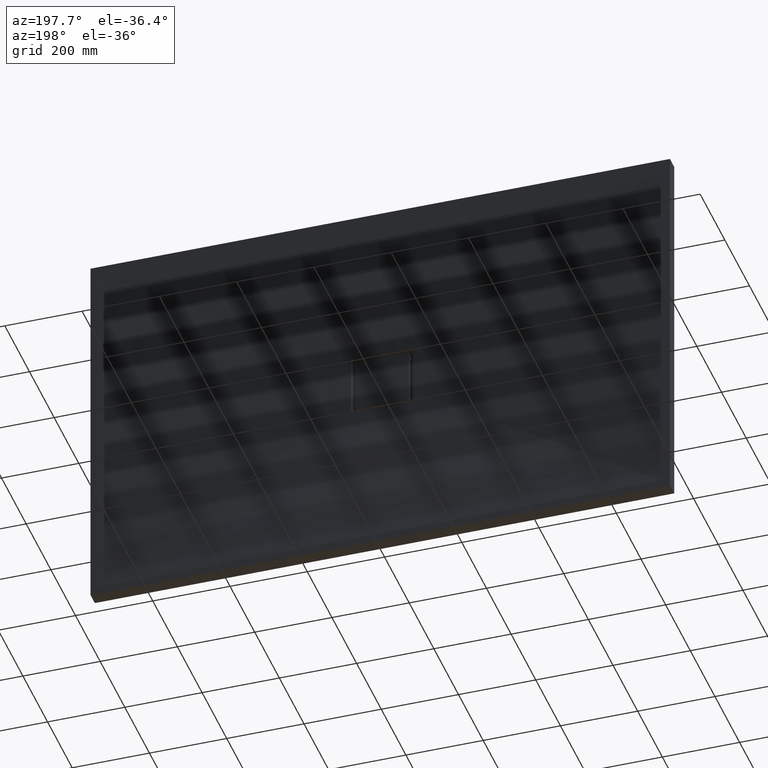
[diagram: clean part render]
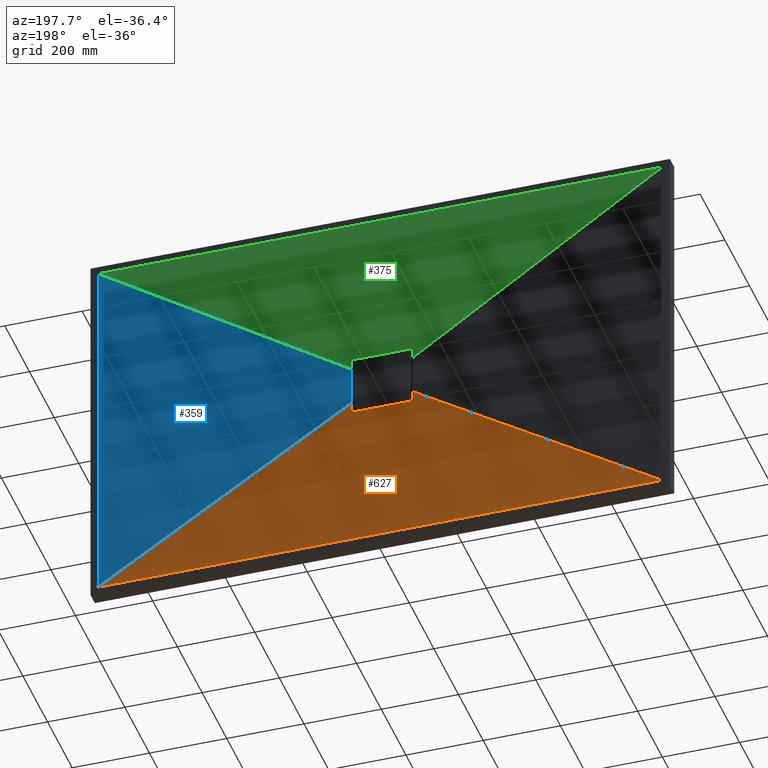
[diagram: same view with three faces highlighted in distinct colors, each labeled with its STEP entity id]
A machine part, auxiliary view with three faces highlighted in distinct colors.
Their STEP definitions:

[orange] entity #627 — the highlighted face is a freeform B-spline surface patch.
#7 = CARTESIAN_POINT ( 'NONE',  ( -60.83333333333992200, 35.00000000000000000, -480.0000000000000000 ) ) ;
#12 = CARTESIAN_POINT ( 'NONE',  ( 17.78098858876726500, 20.00000000000000700, -78.07883384446387300 ) ) ;
#17 = CARTESIAN_POINT ( 'NONE',  ( 730.0000000000000000, 35.00000000000000000, -480.0000000000000000 ) ) ;
#30 = ORIENTED_EDGE ( 'NONE', *, *, #1937, .T. ) ;
#31 = CARTESIAN_POINT ( 'NONE',  ( 64.58356011202960200, 20.59232922332966700, -80.00000000000002800 ) ) ;
#33 = CARTESIAN_POINT ( 'NONE',  ( -486.6666666666700400, 35.00000000000000000, -479.9999999999999400 ) ) ;
#43 = CARTESIAN_POINT ( 'NONE',  ( -80.00000000000018500, 20.29756753600627700, -52.60273972602733000 ) ) ;
#58 = CARTESIAN_POINT ( 'NONE',  ( 79.93368249051880500, 20.73653030956927500, -78.15810285124155100 ) ) ;
#70 = CARTESIAN_POINT ( 'NONE',  ( 60.83333333332666400, 35.00000000000000700, -480.0000000000000000 ) ) ;
#75 = CARTESIAN_POINT ( 'NONE',  ( 51.66726521428925200, 20.42544521054397300, -79.99999999999990100 ) ) ;
#79 = CARTESIAN_POINT ( 'NONE',  ( 79.99999999999981500, 20.72337490267235100, -77.49999999999995700 ) ) ;
#98 = CARTESIAN_POINT ( 'NONE',  ( 77.49999999999984400, 20.74728159742464900, -79.99999999999998600 ) ) ;
#108 = CARTESIAN_POINT ( 'NONE',  ( 79.99999999999977300, 20.40533184651834700, -60.90241090443482400 ) ) ;
#110 = CARTESIAN_POINT ( 'NONE',  ( -78.60908299000654200, 20.75498258542417700, -79.74642342992750300 ) ) ;
#125 = CARTESIAN_POINT ( 'NONE',  ( -334.5833333333382600, 35.00000000000000000, -479.9999999999998900 ) ) ;
#174 = CARTESIAN_POINT ( 'NONE',  ( -398.4222143554216000, 27.50000000000000400, -261.9762505350718100 ) ) ;
#191 = CARTESIAN_POINT ( 'NONE',  ( 79.99999999999978700, 20.29756753600627700, -52.60273972602727400 ) ) ;
#206 = CARTESIAN_POINT ( 'NONE',  ( -14.28322617419752500, 19.99999999999999600, -78.79592618157282400 ) ) ;
#227 = DIRECTION ( 'NONE',  ( -0.8354061718658442000, 0.01889615818747865000, -0.5493081678021996000 ) ) ;
#244 = CARTESIAN_POINT ( 'NONE',  ( -79.87240713645266500, 20.73894700884527600, -78.30529783571563500 ) ) ;
#260 = B_SPLINE_CURVE_WITH_KNOTS ( 'NONE', 3,
 ( #891, #2501, #2938, #2506, #244, #1719, #1729, #1749, #1723, #1442, #1737, #1483, #110, #1481, #1488, #1511 ),
 .UNSPECIFIED., .F., .F.,
 ( 4, 2, 2, 2, 2, 2, 2, 4 ),
 ( 0.0000000000000000000, 0.0004882086631027850400, 0.0009764173262055700800, 0.001464625989308355100, 0.001952834652411140200, 0.002441043315513925300, 0.002929251978616710100, 0.003905669304822295900 ),
 .UNSPECIFIED. ) ;
#283 = CARTESIAN_POINT ( 'NONE',  ( -212.9166666666726800, 35.00000000000000000, -479.9999999999999400 ) ) ;
#287 = CARTESIAN_POINT ( 'NONE',  ( 79.74649137057926400, 20.74393788002261400, -78.60894273016231200 ) ) ;
#377 = CARTESIAN_POINT ( 'NONE',  ( -729.9999999999995500, 35.00000000000000000, -480.0000000000000000 ) ) ;
#418 = CARTESIAN_POINT ( 'NONE',  ( -34.26771552658874500, 19.99999999999999600, -72.37163242847427100 ) ) ;
#433 = CARTESIAN_POINT ( 'NONE',  ( 45.85647518055138500, 20.00000000000000000, -65.63235744570586400 ) ) ;
#440 = CARTESIAN_POINT ( 'NONE',  ( 577.9166666666641300, 35.00000000000000000, -480.0000000000000000 ) ) ;
#466 = EDGE_CURVE ( 'NONE', #2242, #1430, #2365, .T. ) ;
#510 = CARTESIAN_POINT ( 'NONE',  ( -17.78098858876765200, 20.00000000000000000, -78.07883384446384400 ) ) ;
#538 = ORIENTED_EDGE ( 'NONE', *, *, #1545, .T. ) ;
#540 = CARTESIAN_POINT ( 'NONE',  ( 65.31423088561074100, 20.00000000000000400, -46.27967692935139600 ) ) ;
#600 = CARTESIAN_POINT ( 'NONE',  ( -51.66726482995697700, 20.42544520545374500, -79.99999999999997200 ) ) ;
#602 = VECTOR ( 'NONE', #1947, 1000.000000000000100 ) ;
#627 = ADVANCED_FACE ( 'NONE', ( #2057 ), #1467, .F. ) ;
#655 = B_SPLINE_CURVE_WITH_KNOTS ( 'NONE', 3,
 ( #1837, #1832, #108, #191 ),
 .UNSPECIFIED., .F., .F.,
 ( 4, 4 ),
 ( 0.0000000000000000000, 0.02490090120986476100 ),
 .UNSPECIFIED. ) ;
#666 = CARTESIAN_POINT ( 'NONE',  ( -699.5833333333336000, 35.00000000000000000, -480.0000000000000000 ) ) ;
#674 = CARTESIAN_POINT ( 'NONE',  ( -425.8333333333373500, 35.00000000000000000, -479.9999999999999400 ) ) ;
#676 = CARTESIAN_POINT ( 'NONE',  ( -669.1666666666674200, 35.00000000000000000, -480.0000000000000000 ) ) ;
#710 = CARTESIAN_POINT ( 'NONE',  ( -59.88000592127568200, 20.00000000000000700, -53.13220444286612600 ) ) ;
#713 = CARTESIAN_POINT ( 'NONE',  ( -577.9166666666689000, 35.00000000000000000, -479.9999999999999400 ) ) ;
#723 = CARTESIAN_POINT ( 'NONE',  ( -608.3333333333351900, 35.00000000000000000, -480.0000000000000000 ) ) ;
#738 = CARTESIAN_POINT ( 'NONE',  ( 79.99999999999981500, 20.72337490267235100, -77.49999999999995700 ) ) ;
#743 = CARTESIAN_POINT ( 'NONE',  ( -57.83614302380223600, 20.00000000000000000, -55.35817012224006800 ) ) ;
#758 = VERTEX_POINT ( 'NONE', #1768 ) ;
#765 = EDGE_CURVE ( 'NONE', #3007, #2826, #1423, .T. ) ;
#771 = CARTESIAN_POINT ( 'NONE',  ( -304.1666666666719700, 35.00000000000000000, -479.9999999999998900 ) ) ;
#792 = VERTEX_POINT ( 'NONE', #2942 ) ;
#794 = CARTESIAN_POINT ( 'NONE',  ( 669.1666666666656100, 35.00000000000000000, -480.0000000000000000 ) ) ;
#820 = CARTESIAN_POINT ( 'NONE',  ( 395.4166666666616300, 35.00000000000000000, -480.0000000000000000 ) ) ;
#825 = B_SPLINE_CURVE_WITH_KNOTS ( 'NONE', 3,
 ( #1690, #952, #600, #2909, #1942, #2427, #2417, #75, #31, #98 ),
 .UNSPECIFIED., .F., .F.,
 ( 4, 2, 2, 2, 4 ),
 ( 0.0000000000000000000, 0.03875210796476628200, 0.07750421592953256300, 0.1162563238942988500, 0.1550084318590651500 ),
 .UNSPECIFIED. ) ;
#846 = ORIENTED_EDGE ( 'NONE', *, *, #2627, .T. ) ;
#884 = LINE ( 'NONE', #2633, #2511 ) ;
#885 = CARTESIAN_POINT ( 'NONE',  ( -24.59082229488393500, 20.00000000000001100, -76.20865638867229600 ) ) ;
#891 = CARTESIAN_POINT ( 'NONE',  ( -80.00000000000017100, 20.72337490267235400, -77.49999999999995700 ) ) ;
#899 = CARTESIAN_POINT ( 'NONE',  ( -80.00000000000022700, 20.54796906225871900, -69.20148566621740800 ) ) ;
#906 = CARTESIAN_POINT ( 'NONE',  ( 79.15190222372587000, 20.75355120448779200, -79.38355797678613600 ) ) ;
#910 = CARTESIAN_POINT ( 'NONE',  ( 608.3333333333312100, 35.00000000000000000, -480.0000000000000000 ) ) ;
#925 = CARTESIAN_POINT ( 'NONE',  ( -50.99595834023846700, 20.00000000000000000, -61.72385999616457000 ) ) ;
#952 = CARTESIAN_POINT ( 'NONE',  ( -64.58355993399010200, 20.59232922119380800, -79.99999999999994300 ) ) ;
#970 = CARTESIAN_POINT ( 'NONE',  ( 59.88000592127530600, 20.00000000000000400, -53.13220444286612600 ) ) ;
#981 = CARTESIAN_POINT ( 'NONE',  ( -729.9999999999995500, 35.00000000000000000, -480.0000000000000000 ) ) ;
#984 = CARTESIAN_POINT ( 'NONE',  ( 57.83614302380183900, 19.99999999999999300, -55.35817012224009700 ) ) ;
#1008 = CARTESIAN_POINT ( 'NONE',  ( -80.00000000000018500, 20.40533184651832200, -60.90241090443485200 ) ) ;
#1043 = LINE ( 'NONE', #1867, #602 ) ;
#1076 = CARTESIAN_POINT ( 'NONE',  ( 486.6666666666627100, 35.00000000000000000, -480.0000000000000000 ) ) ;
#1086 = CARTESIAN_POINT ( 'NONE',  ( 43.11513718914951500, 19.99999999999999600, -67.47086384605854900 ) ) ;
#1099 = CARTESIAN_POINT ( 'NONE',  ( 152.0833333333267200, 35.00000000000000700, -480.0000000000000000 ) ) ;
#1105 = CARTESIAN_POINT ( 'NONE',  ( 50.99595834023806200, 19.99999999999999600, -61.72385999616462000 ) ) ;
#1110 = CARTESIAN_POINT ( 'NONE',  ( -65.31423088561112400, 19.99999999999999300, -46.27967692935136800 ) ) ;
#1186 = CARTESIAN_POINT ( 'NONE',  ( 7.190180150497578600, 19.99999999999999600, -79.75656613820919500 ) ) ;
#1187 = CARTESIAN_POINT ( 'NONE',  ( 79.02326078082973000, 20.75431026900704600, -79.48905510671265500 ) ) ;
#1250 = CARTESIAN_POINT ( 'NONE',  ( 77.66506709047254700, 20.74926182864746600, -79.99999999999997200 ) ) ;
#1277 = EDGE_CURVE ( 'NONE', #758, #2950, #260, .T. ) ;
#1352 = CARTESIAN_POINT ( 'NONE',  ( 304.1666666666608300, 35.00000000000000000, -480.0000000000000000 ) ) ;
#1403 = ORIENTED_EDGE ( 'NONE', *, *, #2896, .T. ) ;
#1423 = B_SPLINE_CURVE_WITH_KNOTS ( 'NONE', 3,
 ( #3287, #1250, #1994, #3071, #2030, #1548, #3063, #1187, #906, #2772, #2260, #1887, #287, #58, #1673, #738 ),
 .UNSPECIFIED., .F., .F.,
 ( 4, 2, 2, 2, 2, 2, 2, 4 ),
 ( 1.387778780781445700E-017, 0.0004882086201234696200, 0.0009764172402469253700, 0.001464625860370381100, 0.001952834480493836900, 0.002441043100617292700, 0.002929251720740748200, 0.003905668960987621700 ),
 .UNSPECIFIED. ) ;
#1430 = VERTEX_POINT ( 'NONE', #981 ) ;
#1442 = CARTESIAN_POINT ( 'NONE',  ( -79.15324920597738900, 20.75354160780322100, -79.38237599313365000 ) ) ;
#1456 = CARTESIAN_POINT ( 'NONE',  ( 243.3333333333270900, 35.00000000000000000, -480.0000000000000600 ) ) ;
#1467 = B_SPLINE_SURFACE_WITH_KNOTS ( 'NONE', 3, 1, ( 
 ( #377, #1783 ),
 ( #666, #1110 ),
 ( #676, #2111 ),
 ( #723, #710 ),
 ( #713, #743 ),
 ( #3191, #1742 ),
 ( #33, #925 ),
 ( #674, #1641 ),
 ( #2080, #1786 ),
 ( #125, #1922 ),
 ( #771, #418 ),
 ( #1794, #1686 ),
 ( #283, #885 ),
 ( #2219, #510 ),
 ( #2769, #206 ),
 ( #7, #1917 ),
 ( #1899, #1702 ),
 ( #1668, #1642 ),
 ( #70, #1186 ),
 ( #1607, #2640 ),
 ( #1099, #12 ),
 ( #2656, #2497 ),
 ( #1456, #2439 ),
 ( #1352, #3262 ),
 ( #2444, #1634 ),
 ( #820, #1086 ),
 ( #2681, #433 ),
 ( #1076, #1105 ),
 ( #3224, #2762 ),
 ( #440, #984 ),
 ( #910, #970 ),
 ( #794, #2754 ),
 ( #2125, #540 ),
 ( #17, #2382 ) ),
 .UNSPECIFIED., .F., .F., .F.,
 ( 4, 2, 2, 2, 2, 2, 2, 2, 2, 2, 2, 2, 2, 2, 2, 2, 4 ),
 ( 2, 2 ),
 ( 0.0000000000000000000, 0.06249999999999995800, 0.1250000000000000300, 0.1875000000000000800, 0.2500000000000000600, 0.3125000000000000000, 0.3749999999999999400, 0.4374999999999999400, 0.5000000000000000000, 0.5624999999999998900, 0.6249999999999997800, 0.6874999999999997800, 0.7499999999999997800, 0.8124999999999998900, 0.8750000000000000000, 0.9375000000000000000, 1.000000000000000000 ),
 ( 0.0000000000000000000, 1.000000000000000000 ),
 .UNSPECIFIED. ) ;
#1481 = CARTESIAN_POINT ( 'NONE',  ( -78.15820362912754100, 20.75369959421530900, -79.93366004273393300 ) ) ;
#1483 = CARTESIAN_POINT ( 'NONE',  ( -78.75450322843603600, 20.75501843258394200, -79.66868860253407500 ) ) ;
#1488 = CARTESIAN_POINT ( 'NONE',  ( -77.83013543412303600, 20.75124207490404200, -79.99999999999990100 ) ) ;
#1511 = CARTESIAN_POINT ( 'NONE',  ( -77.50000000000018500, 20.74728159742464900, -79.99999999999992900 ) ) ;
#1545 = EDGE_CURVE ( 'NONE', #2826, #792, #655, .T. ) ;
#1548 = CARTESIAN_POINT ( 'NONE',  ( 78.60804732091558800, 20.75498306035850500, -79.74701056525553600 ) ) ;
#1607 = CARTESIAN_POINT ( 'NONE',  ( 121.6666666666600100, 35.00000000000000700, -480.0000000000000000 ) ) ;
#1634 = CARTESIAN_POINT ( 'NONE',  ( 37.32075798334639700, 19.99999999999999600, -70.84062073782978100 ) ) ;
#1641 = CARTESIAN_POINT ( 'NONE',  ( -45.85647518055181800, 20.00000000000000400, -65.63235744570585000 ) ) ;
#1642 = CARTESIAN_POINT ( 'NONE',  ( 3.595163638422709300, 20.00000000000000000, -80.00000000000001400 ) ) ;
#1668 = CARTESIAN_POINT ( 'NONE',  ( 30.41666666666002800, 35.00000000000000700, -480.0000000000000000 ) ) ;
#1673 = CARTESIAN_POINT ( 'NONE',  ( 79.99999999999985800, 20.73035187230991000, -77.83008298017394100 ) ) ;
#1685 = VERTEX_POINT ( 'NONE', #2467 ) ;
#1686 = CARTESIAN_POINT ( 'NONE',  ( -27.90269961258950800, 20.00000000000000000, -75.05577167748660400 ) ) ;
#1690 = CARTESIAN_POINT ( 'NONE',  ( -77.50000000000018500, 20.74728159742464900, -79.99999999999992900 ) ) ;
#1702 = CARTESIAN_POINT ( 'NONE',  ( -3.595163638423100500, 20.00000000000000700, -80.00000000000001400 ) ) ;
#1719 = CARTESIAN_POINT ( 'NONE',  ( -79.74707769774060800, 20.74392267143957700, -78.60790886160211200 ) ) ;
#1723 = CARTESIAN_POINT ( 'NONE',  ( -79.38368881353113700, 20.75129406880513400, -79.15175324136760100 ) ) ;
#1729 = CARTESIAN_POINT ( 'NONE',  ( -79.67038046925173900, 20.74608750149359100, -78.75144226295159900 ) ) ;
#1737 = CARTESIAN_POINT ( 'NONE',  ( -79.02751135365863900, 20.75429175829305400, -79.48587453515114000 ) ) ;
#1742 = CARTESIAN_POINT ( 'NONE',  ( -53.39418171596762600, 20.00000000000000000, -59.65406774089094500 ) ) ;
#1749 = CARTESIAN_POINT ( 'NONE',  ( -79.48917346860187600, 20.74977328490339400, -79.02310473396315200 ) ) ;
#1768 = CARTESIAN_POINT ( 'NONE',  ( -80.00000000000017100, 20.72337490267235400, -77.49999999999995700 ) ) ;
#1783 = CARTESIAN_POINT ( 'NONE',  ( -66.84442871084365800, 20.00000000000000000, -43.95250107014354100 ) ) ;
#1786 = CARTESIAN_POINT ( 'NONE',  ( -43.11513718914988400, 20.00000000000000000, -67.47086384605856300 ) ) ;
#1794 = CARTESIAN_POINT ( 'NONE',  ( -243.3333333333391700, 35.00000000000000000, -479.9999999999998900 ) ) ;
#1807 = EDGE_CURVE ( 'NONE', #1685, #792, #1043, .T. ) ;
#1832 = CARTESIAN_POINT ( 'NONE',  ( 79.99999999999981500, 20.54796906225870900, -69.20148566621740800 ) ) ;
#1837 = CARTESIAN_POINT ( 'NONE',  ( 79.99999999999981500, 20.72337490267235100, -77.49999999999995700 ) ) ;
#1867 = CARTESIAN_POINT ( 'NONE',  ( 398.4222143554216600, 27.50000000000000400, -261.9762505350718100 ) ) ;
#1887 = CARTESIAN_POINT ( 'NONE',  ( 79.66878285540619200, 20.74613064791634200, -78.75434004391178200 ) ) ;
#1899 = CARTESIAN_POINT ( 'NONE',  ( -30.41666666667327200, 35.00000000000000700, -479.9999999999999400 ) ) ;
#1917 = CARTESIAN_POINT ( 'NONE',  ( -7.190180150497985400, 20.00000000000000000, -79.75656613820920900 ) ) ;
#1922 = CARTESIAN_POINT ( 'NONE',  ( -37.32075798334677300, 20.00000000000000700, -70.84062073782980900 ) ) ;
#1937 = EDGE_CURVE ( 'NONE', #2242, #758, #2451, .T. ) ;
#1942 = CARTESIAN_POINT ( 'NONE',  ( -12.91757371140832200, 19.99999999498944800, -80.00000000000005700 ) ) ;
#1947 = DIRECTION ( 'NONE',  ( -0.8354061718658445400, -0.01889615818747863300, 0.5493081678021990400 ) ) ;
#1994 = CARTESIAN_POINT ( 'NONE',  ( 77.82738136524386600, 20.75084851756450600, -79.98381219146996600 ) ) ;
#1996 = ORIENTED_EDGE ( 'NONE', *, *, #765, .T. ) ;
#2028 = ORIENTED_EDGE ( 'NONE', *, *, #466, .F. ) ;
#2030 = CARTESIAN_POINT ( 'NONE',  ( 78.30541432766848700, 20.75411501797027100, -79.87236867003100800 ) ) ;
#2057 = FACE_OUTER_BOUND ( 'NONE', #3263, .T. ) ;
#2079 = CARTESIAN_POINT ( 'NONE',  ( -80.00000000000018500, 20.29756753600627700, -52.60273972602733000 ) ) ;
#2080 = CARTESIAN_POINT ( 'NONE',  ( -395.4166666666710100, 35.00000000000000000, -479.9999999999999400 ) ) ;
#2111 = CARTESIAN_POINT ( 'NONE',  ( -63.61897898002700900, 20.00000000000000400, -48.59291894535060400 ) ) ;
#2125 = CARTESIAN_POINT ( 'NONE',  ( 699.5833333333328000, 35.00000000000000000, -480.0000000000000000 ) ) ;
#2187 = CARTESIAN_POINT ( 'NONE',  ( 77.49999999999984400, 20.74728159742464900, -79.99999999999998600 ) ) ;
#2219 = CARTESIAN_POINT ( 'NONE',  ( -152.0833333333396800, 35.00000000000000000, -479.9999999999999400 ) ) ;
#2242 = VERTEX_POINT ( 'NONE', #43 ) ;
#2260 = CARTESIAN_POINT ( 'NONE',  ( 79.48599149907825300, 20.74982707353080300, -79.02735908850974100 ) ) ;
#2315 = ORIENTED_EDGE ( 'NONE', *, *, #1807, .F. ) ;
#2327 = CARTESIAN_POINT ( 'NONE',  ( -77.50000000000018500, 20.74728159742464900, -79.99999999999992900 ) ) ;
#2365 = LINE ( 'NONE', #174, #2440 ) ;
#2382 = CARTESIAN_POINT ( 'NONE',  ( 66.84442871084327500, 20.00000000000000000, -43.95250107014356200 ) ) ;
#2417 = CARTESIAN_POINT ( 'NONE',  ( 25.83424169381748900, 20.12736958912086000, -79.99999999999994300 ) ) ;
#2427 = CARTESIAN_POINT ( 'NONE',  ( 12.91757535901146500, 20.00000000501057000, -80.00000000000002800 ) ) ;
#2439 = CARTESIAN_POINT ( 'NONE',  ( 27.90269961258911000, 19.99999999999999600, -75.05577167748659000 ) ) ;
#2440 = VECTOR ( 'NONE', #227, 1000.000000000000000 ) ;
#2444 = CARTESIAN_POINT ( 'NONE',  ( 334.5833333333277400, 35.00000000000000000, -480.0000000000000000 ) ) ;
#2451 = B_SPLINE_CURVE_WITH_KNOTS ( 'NONE', 3,
 ( #2079, #1008, #899, #2771 ),
 .UNSPECIFIED., .F., .F.,
 ( 4, 4 ),
 ( 0.0000000000000000000, 0.02490090120986471200 ),
 .UNSPECIFIED. ) ;
#2467 = CARTESIAN_POINT ( 'NONE',  ( 730.0000000000000000, 35.00000000000000000, -480.0000000000000000 ) ) ;
#2497 = CARTESIAN_POINT ( 'NONE',  ( 24.59082229488354400, 20.00000000000000700, -76.20865638867235200 ) ) ;
#2501 = CARTESIAN_POINT ( 'NONE',  ( -80.00000000000017100, 20.72686339462049800, -77.66504182737956800 ) ) ;
#2506 = CARTESIAN_POINT ( 'NONE',  ( -79.92040432727372900, 20.73613776432312200, -78.14663492098000600 ) ) ;
#2511 = VECTOR ( 'NONE', #2637, 1000.000000000000000 ) ;
#2627 = EDGE_CURVE ( 'NONE', #2950, #3007, #825, .T. ) ;
#2633 = CARTESIAN_POINT ( 'NONE',  ( 730.0000000000000000, 35.00000000000000000, -480.0000000000000000 ) ) ;
#2637 = DIRECTION ( 'NONE',  ( -1.000000000000000000, 0.0000000000000000000, 0.0000000000000000000 ) ) ;
#2640 = CARTESIAN_POINT ( 'NONE',  ( 14.28322617419712000, 19.99999999999999600, -78.79592618157282400 ) ) ;
#2656 = CARTESIAN_POINT ( 'NONE',  ( 212.9166666666602600, 35.00000000000000000, -480.0000000000000000 ) ) ;
#2681 = CARTESIAN_POINT ( 'NONE',  ( 425.8333333333286000, 35.00000000000000000, -480.0000000000000000 ) ) ;
#2754 = CARTESIAN_POINT ( 'NONE',  ( 63.61897898002662500, 20.00000000000000000, -48.59291894535061800 ) ) ;
#2762 = CARTESIAN_POINT ( 'NONE',  ( 53.39418171596723500, 20.00000000000000000, -59.65406774089098700 ) ) ;
#2769 = CARTESIAN_POINT ( 'NONE',  ( -121.6666666666731100, 35.00000000000000000, -480.0000000000000000 ) ) ;
#2771 = CARTESIAN_POINT ( 'NONE',  ( -80.00000000000017100, 20.72337490267235400, -77.49999999999995700 ) ) ;
#2772 = CARTESIAN_POINT ( 'NONE',  ( 79.38250386458074100, 20.75130912804327500, -79.15310338711881900 ) ) ;
#2826 = VERTEX_POINT ( 'NONE', #79 ) ;
#2896 = EDGE_CURVE ( 'NONE', #1685, #1430, #884, .T. ) ;
#2909 = CARTESIAN_POINT ( 'NONE',  ( -25.83424101185430300, 20.12736958190758300, -79.99999999999997200 ) ) ;
#2938 = CARTESIAN_POINT ( 'NONE',  ( -79.98381709557682500, 20.73010905225111200, -77.82733234523432500 ) ) ;
#2942 = CARTESIAN_POINT ( 'NONE',  ( 79.99999999999978700, 20.29756753600627700, -52.60273972602727400 ) ) ;
#2950 = VERTEX_POINT ( 'NONE', #2327 ) ;
#3007 = VERTEX_POINT ( 'NONE', #2187 ) ;
#3063 = CARTESIAN_POINT ( 'NONE',  ( 78.75158852867751600, 20.75501880144086200, -79.67029716371668300 ) ) ;
#3071 = CARTESIAN_POINT ( 'NONE',  ( 78.14672868555875600, 20.75327368616376600, -79.92038087252376500 ) ) ;
#3191 = CARTESIAN_POINT ( 'NONE',  ( -517.0833333333363300, 35.00000000000000000, -479.9999999999999400 ) ) ;
#3224 = CARTESIAN_POINT ( 'NONE',  ( 517.0833333333297300, 35.00000000000000000, -480.0000000000000000 ) ) ;
#3262 = CARTESIAN_POINT ( 'NONE',  ( 34.26771552658836100, 20.00000000000000000, -72.37163242847430000 ) ) ;
#3263 = EDGE_LOOP ( 'NONE', ( #2028, #30, #3265, #846, #1996, #538, #2315, #1403 ) ) ;
#3265 = ORIENTED_EDGE ( 'NONE', *, *, #1277, .T. ) ;
#3287 = CARTESIAN_POINT ( 'NONE',  ( 77.49999999999984400, 20.74728159742464900, -79.99999999999998600 ) ) ;

[blue] entity #359 — the highlighted face is a freeform B-spline surface patch.
#65 = CARTESIAN_POINT ( 'NONE',  ( 730.0000000000003400, 35.00000000000000000, 480.0000000000000000 ) ) ;
#87 = CARTESIAN_POINT ( 'NONE',  ( 730.0000000000002300, 35.00000000000000000, 40.00000000000006400 ) ) ;
#132 = EDGE_LOOP ( 'NONE', ( #1482, #2132, #2821, #2138 ) ) ;
#163 = CARTESIAN_POINT ( 'NONE',  ( 70.69989252939682000, 20.00000000000000000, 37.62925046358960700 ) ) ;
#182 = VERTEX_POINT ( 'NONE', #65 ) ;
#263 = VERTEX_POINT ( 'NONE', #3234 ) ;
#323 = B_SPLINE_SURFACE_WITH_KNOTS ( 'NONE', 3, 1, ( 
 ( #2693, #675 ),
 ( #1294, #2545 ),
 ( #2572, #695 ),
 ( #1115, #1229 ),
 ( #1829, #1157 ),
 ( #1844, #1209 ),
 ( #1121, #1812 ),
 ( #2414, #2179 ),
 ( #2849, #2859 ),
 ( #87, #1628 ),
 ( #360, #3292 ),
 ( #486, #804 ),
 ( #1609, #557 ),
 ( #684, #1303 ),
 ( #2182, #1107 ),
 ( #2736, #163 ),
 ( #479, #1273 ),
 ( #1913, #416 ) ),
 .UNSPECIFIED., .F., .F., .F.,
 ( 4, 2, 2, 2, 2, 2, 2, 2, 4 ),
 ( 2, 2 ),
 ( 0.0000000000000000000, 0.1250000000000000000, 0.2500000000000000000, 0.3750000000000000000, 0.5000000000000000000, 0.6250000000000000000, 0.7500000000000000000, 0.8750000000000000000, 1.000000000000000000 ),
 ( 0.0000000000000000000, 1.000000000000000000 ),
 .UNSPECIFIED. ) ;
#327 = DIRECTION ( 'NONE',  ( -3.469446951953614200E-016, 0.0000000000000000000, -1.000000000000000000 ) ) ;
#359 = ADVANCED_FACE ( 'NONE', ( #2705 ), #323, .F. ) ;
#360 = CARTESIAN_POINT ( 'NONE',  ( 730.0000000000002300, 35.00000000000000000, 80.00000000000007100 ) ) ;
#416 = CARTESIAN_POINT ( 'NONE',  ( 66.84442871084327500, 20.00000000000000000, 43.95250107014368300 ) ) ;
#479 = CARTESIAN_POINT ( 'NONE',  ( 730.0000000000003400, 35.00000000000000000, 440.0000000000000000 ) ) ;
#486 = CARTESIAN_POINT ( 'NONE',  ( 730.0000000000002300, 35.00000000000000000, 160.0000000000000600 ) ) ;
#557 = CARTESIAN_POINT ( 'NONE',  ( 77.63771430308135300, 19.99999999999999600, 19.68811830135162600 ) ) ;
#589 = LINE ( 'NONE', #948, #1784 ) ;
#602 = VECTOR ( 'NONE', #1947, 1000.000000000000100 ) ;
#654 = DIRECTION ( 'NONE',  ( -0.8354061718658447600, -0.01889615818747863000, -0.5493081678021987100 ) ) ;
#675 = CARTESIAN_POINT ( 'NONE',  ( 66.84442871084324600, 20.00000000000000000, -43.95250107014357600 ) ) ;
#684 = CARTESIAN_POINT ( 'NONE',  ( 730.0000000000003400, 35.00000000000000000, 280.0000000000000600 ) ) ;
#695 = CARTESIAN_POINT ( 'NONE',  ( 70.69989252939682000, 20.00000000000000400, -37.62925046358951400 ) ) ;
#792 = VERTEX_POINT ( 'NONE', #2942 ) ;
#804 = CARTESIAN_POINT ( 'NONE',  ( 78.51847946194581600, 20.00000000000000000, 15.83029865828928700 ) ) ;
#827 = LINE ( 'NONE', #975, #1492 ) ;
#948 = CARTESIAN_POINT ( 'NONE',  ( 398.4222143554217700, 27.50000000000000400, 261.9762505350718700 ) ) ;
#975 = CARTESIAN_POINT ( 'NONE',  ( 730.0000000000003400, 35.00000000000000000, 480.0000000000000000 ) ) ;
#1043 = LINE ( 'NONE', #1867, #602 ) ;
#1107 = CARTESIAN_POINT ( 'NONE',  ( 73.94783370635914800, 19.99999999999999600, 30.75960312254489500 ) ) ;
#1115 = CARTESIAN_POINT ( 'NONE',  ( 730.0000000000000000, 35.00000000000000000, -319.9999999999998900 ) ) ;
#1121 = CARTESIAN_POINT ( 'NONE',  ( 730.0000000000001100, 35.00000000000000000, -159.9999999999999400 ) ) ;
#1157 = CARTESIAN_POINT ( 'NONE',  ( 75.35221163484369800, 19.99999999999999600, -27.15291671612125400 ) ) ;
#1209 = CARTESIAN_POINT ( 'NONE',  ( 77.63771430308132400, 19.99999999999999300, -19.68811830135153300 ) ) ;
#1229 = CARTESIAN_POINT ( 'NONE',  ( 73.94783370635912000, 20.00000000000000000, -30.75960312254479900 ) ) ;
#1273 = CARTESIAN_POINT ( 'NONE',  ( 68.85674365909430600, 20.00000000000000000, 40.89210541967857900 ) ) ;
#1294 = CARTESIAN_POINT ( 'NONE',  ( 730.0000000000000000, 35.00000000000000000, -439.9999999999999400 ) ) ;
#1303 = CARTESIAN_POINT ( 'NONE',  ( 75.35221163484372700, 19.99999999999998900, 27.15291671612135400 ) ) ;
#1482 = ORIENTED_EDGE ( 'NONE', *, *, #1807, .T. ) ;
#1492 = VECTOR ( 'NONE', #327, 1000.000000000000000 ) ;
#1609 = CARTESIAN_POINT ( 'NONE',  ( 730.0000000000002300, 35.00000000000000000, 200.0000000000000600 ) ) ;
#1628 = CARTESIAN_POINT ( 'NONE',  ( 79.99999999999984400, 20.00000000000000000, 3.990844955758591400 ) ) ;
#1685 = VERTEX_POINT ( 'NONE', #2467 ) ;
#1710 = EDGE_CURVE ( 'NONE', #182, #1685, #827, .T. ) ;
#1746 = CARTESIAN_POINT ( 'NONE',  ( 79.99999999945667600, 20.00000122086740000, -17.53496761955843300 ) ) ;
#1769 = CARTESIAN_POINT ( 'NONE',  ( 79.99999999945667600, 19.99999877913260000, 17.53448752477206800 ) ) ;
#1784 = VECTOR ( 'NONE', #654, 1000.000000000000000 ) ;
#1787 = CARTESIAN_POINT ( 'NONE',  ( 79.99999999999978700, 20.14388672363017500, -35.06888143455144300 ) ) ;
#1795 = CARTESIAN_POINT ( 'NONE',  ( 79.99999999999984400, 20.29756753600628000, 52.60273972602750100 ) ) ;
#1807 = EDGE_CURVE ( 'NONE', #1685, #792, #1043, .T. ) ;
#1812 = CARTESIAN_POINT ( 'NONE',  ( 78.51847946194580200, 19.99999999999999600, -15.83029865828919600 ) ) ;
#1829 = CARTESIAN_POINT ( 'NONE',  ( 730.0000000000000000, 35.00000000000000000, -279.9999999999999400 ) ) ;
#1844 = CARTESIAN_POINT ( 'NONE',  ( 730.0000000000000000, 35.00000000000000000, -199.9999999999999400 ) ) ;
#1867 = CARTESIAN_POINT ( 'NONE',  ( 398.4222143554216600, 27.50000000000000400, -261.9762505350718100 ) ) ;
#1913 = CARTESIAN_POINT ( 'NONE',  ( 730.0000000000003400, 35.00000000000000000, 480.0000000000000000 ) ) ;
#1947 = DIRECTION ( 'NONE',  ( -0.8354061718658445400, -0.01889615818747863300, 0.5493081678021990400 ) ) ;
#2076 = CARTESIAN_POINT ( 'NONE',  ( 79.99999999999978700, 20.29756753600627700, -52.60273972602727400 ) ) ;
#2132 = ORIENTED_EDGE ( 'NONE', *, *, #2353, .T. ) ;
#2138 = ORIENTED_EDGE ( 'NONE', *, *, #1710, .T. ) ;
#2179 = CARTESIAN_POINT ( 'NONE',  ( 79.69972740894539200, 19.99999999999999300, -7.981442448983718100 ) ) ;
#2180 = CARTESIAN_POINT ( 'NONE',  ( 79.99999999999990100, 20.14388539347732600, 35.06872967382479100 ) ) ;
#2182 = CARTESIAN_POINT ( 'NONE',  ( 730.0000000000003400, 35.00000000000000000, 320.0000000000000600 ) ) ;
#2353 = EDGE_CURVE ( 'NONE', #792, #263, #2984, .T. ) ;
#2414 = CARTESIAN_POINT ( 'NONE',  ( 730.0000000000002300, 35.00000000000000000, -79.99999999999992900 ) ) ;
#2467 = CARTESIAN_POINT ( 'NONE',  ( 730.0000000000000000, 35.00000000000000000, -480.0000000000000000 ) ) ;
#2545 = CARTESIAN_POINT ( 'NONE',  ( 68.85674365909423500, 19.99999999999999600, -40.89210541967850100 ) ) ;
#2557 = EDGE_CURVE ( 'NONE', #182, #263, #589, .T. ) ;
#2572 = CARTESIAN_POINT ( 'NONE',  ( 730.0000000000000000, 35.00000000000000000, -399.9999999999998900 ) ) ;
#2693 = CARTESIAN_POINT ( 'NONE',  ( 730.0000000000000000, 35.00000000000000000, -480.0000000000000000 ) ) ;
#2705 = FACE_OUTER_BOUND ( 'NONE', #132, .T. ) ;
#2736 = CARTESIAN_POINT ( 'NONE',  ( 730.0000000000003400, 35.00000000000000000, 400.0000000000000000 ) ) ;
#2821 = ORIENTED_EDGE ( 'NONE', *, *, #2557, .F. ) ;
#2849 = CARTESIAN_POINT ( 'NONE',  ( 730.0000000000002300, 35.00000000000000000, -39.99999999999993600 ) ) ;
#2859 = CARTESIAN_POINT ( 'NONE',  ( 79.99999999999984400, 20.00000000000000000, -3.990844955758502200 ) ) ;
#2942 = CARTESIAN_POINT ( 'NONE',  ( 79.99999999999978700, 20.29756753600627700, -52.60273972602727400 ) ) ;
#2984 = B_SPLINE_CURVE_WITH_KNOTS ( 'NONE', 3,
 ( #2076, #1787, #1746, #1769, #2180, #1795 ),
 .UNSPECIFIED., .F., .F.,
 ( 4, 2, 4 ),
 ( 0.0000000000000000000, 0.05260334132809227300, 0.1052066826561845500 ),
 .UNSPECIFIED. ) ;
#3234 = CARTESIAN_POINT ( 'NONE',  ( 79.99999999999984400, 20.29756753600628000, 52.60273972602750100 ) ) ;
#3292 = CARTESIAN_POINT ( 'NONE',  ( 79.69972740894539200, 19.99999999999999600, 7.981442448983805200 ) ) ;

[green] entity #375 — the highlighted face is a freeform B-spline surface patch.
#65 = CARTESIAN_POINT ( 'NONE',  ( 730.0000000000003400, 35.00000000000000000, 480.0000000000000000 ) ) ;
#68 = ORIENTED_EDGE ( 'NONE', *, *, #1234, .T. ) ;
#84 = B_SPLINE_CURVE_WITH_KNOTS ( 'NONE', 3,
 ( #2326, #2145, #2411, #1756 ),
 .UNSPECIFIED., .F., .F.,
 ( 4, 4 ),
 ( 0.0000000000000000000, 0.02490090120986472600 ),
 .UNSPECIFIED. ) ;
#123 = ORIENTED_EDGE ( 'NONE', *, *, #2557, .T. ) ;
#143 = ORIENTED_EDGE ( 'NONE', *, *, #1714, .T. ) ;
#151 = CARTESIAN_POINT ( 'NONE',  ( 212.9166666666698400, 35.00000000000000000, 479.9999999999999400 ) ) ;
#182 = VERTEX_POINT ( 'NONE', #65 ) ;
#230 = CARTESIAN_POINT ( 'NONE',  ( -14.28322617419749300, 19.99999999999999600, 78.79592618157293800 ) ) ;
#263 = VERTEX_POINT ( 'NONE', #3234 ) ;
#270 = CARTESIAN_POINT ( 'NONE',  ( -608.3333333333320100, 35.00000000000000000, 480.0000000000000000 ) ) ;
#274 = CARTESIAN_POINT ( 'NONE',  ( 34.26771552658836100, 19.99999999999999600, 72.37163242847442700 ) ) ;
#278 = VECTOR ( 'NONE', #1009, 1000.000000000000000 ) ;
#355 = CARTESIAN_POINT ( 'NONE',  ( 78.60908299000621500, 20.75498258542417300, 79.74642342992767400 ) ) ;
#375 = ADVANCED_FACE ( 'NONE', ( #2617 ), #2515, .F. ) ;
#401 = CARTESIAN_POINT ( 'NONE',  ( -121.6666666666632000, 35.00000000000000700, 480.0000000000000000 ) ) ;
#410 = CARTESIAN_POINT ( 'NONE',  ( 395.4166666666690200, 35.00000000000000000, 479.9999999999999400 ) ) ;
#442 = CARTESIAN_POINT ( 'NONE',  ( -57.83614302380223600, 20.00000000000000000, 55.35817012224022400 ) ) ;
#460 = CARTESIAN_POINT ( 'NONE',  ( 334.5833333333359300, 35.00000000000000000, 479.9999999999998900 ) ) ;
#499 = CARTESIAN_POINT ( 'NONE',  ( -63.61897898002702300, 20.00000000000000000, 48.59291894535075300 ) ) ;
#516 = VERTEX_POINT ( 'NONE', #1675 ) ;
#546 = CARTESIAN_POINT ( 'NONE',  ( 57.83614302380186000, 20.00000000000000000, 55.35817012224020300 ) ) ;
#589 = LINE ( 'NONE', #948, #1784 ) ;
#654 = DIRECTION ( 'NONE',  ( -0.8354061718658447600, -0.01889615818747863000, -0.5493081678021987100 ) ) ;
#670 = EDGE_CURVE ( 'NONE', #1179, #182, #1875, .T. ) ;
#726 = CARTESIAN_POINT ( 'NONE',  ( 24.59082229488355500, 20.00000000000001100, 76.20865638867243800 ) ) ;
#736 = CARTESIAN_POINT ( 'NONE',  ( 66.84442871084327500, 20.00000000000000000, 43.95250107014367600 ) ) ;
#750 = CARTESIAN_POINT ( 'NONE',  ( -34.26771552658871700, 19.99999999999999600, 72.37163242847438500 ) ) ;
#800 = EDGE_LOOP ( 'NONE', ( #143, #68, #1984, #3295, #3242, #3072, #123, #1563 ) ) ;
#818 = CARTESIAN_POINT ( 'NONE',  ( 79.99999999999984400, 20.29756753600628000, 52.60273972602750100 ) ) ;
#840 = LINE ( 'NONE', #1013, #278 ) ;
#874 = CARTESIAN_POINT ( 'NONE',  ( -30.41666666666328900, 35.00000000000000700, 480.0000000000000000 ) ) ;
#889 = CARTESIAN_POINT ( 'NONE',  ( 43.11513718914950000, 20.00000000000000000, 67.47086384605867700 ) ) ;
#895 = VERTEX_POINT ( 'NONE', #1464 ) ;
#907 = CARTESIAN_POINT ( 'NONE',  ( -729.9999999999998900, 35.00000000000000000, 480.0000000000000000 ) ) ;
#911 = CARTESIAN_POINT ( 'NONE',  ( 486.6666666666685600, 35.00000000000000000, 479.9999999999999400 ) ) ;
#912 = CARTESIAN_POINT ( 'NONE',  ( 577.9166666666682200, 35.00000000000000000, 479.9999999999999400 ) ) ;
#915 = CARTESIAN_POINT ( 'NONE',  ( 59.88000592127531300, 20.00000000000000700, 53.13220444286626800 ) ) ;
#948 = CARTESIAN_POINT ( 'NONE',  ( 398.4222143554217700, 27.50000000000000400, 261.9762505350718700 ) ) ;
#957 = CARTESIAN_POINT ( 'NONE',  ( 37.32075798334640400, 20.00000000000000700, 70.84062073782990900 ) ) ;
#1009 = DIRECTION ( 'NONE',  ( 0.8354061718658444300, -0.01889615818747864700, -0.5493081678021992700 ) ) ;
#1013 = CARTESIAN_POINT ( 'NONE',  ( -398.4222143554217700, 27.50000000000000400, 261.9762505350718700 ) ) ;
#1033 = CARTESIAN_POINT ( 'NONE',  ( -699.5833333333328000, 35.00000000000000000, 480.0000000000000000 ) ) ;
#1035 = EDGE_CURVE ( 'NONE', #263, #895, #2429, .T. ) ;
#1038 = CARTESIAN_POINT ( 'NONE',  ( 79.99999999999984400, 20.72686339462049800, 77.66504182737973800 ) ) ;
#1079 = CARTESIAN_POINT ( 'NONE',  ( 53.39418171596725000, 20.00000000000000000, 59.65406774089108000 ) ) ;
#1093 = EDGE_CURVE ( 'NONE', #2945, #2798, #84, .T. ) ;
#1114 = CARTESIAN_POINT ( 'NONE',  ( 79.92040432727338800, 20.73613776432312200, 78.14663492098014800 ) ) ;
#1117 = CARTESIAN_POINT ( 'NONE',  ( 79.98381709557648400, 20.73010905225111600, 77.82733234523451000 ) ) ;
#1136 = CARTESIAN_POINT ( 'NONE',  ( 79.48917346860155000, 20.74977328490339400, 79.02310473396339300 ) ) ;
#1146 = CARTESIAN_POINT ( 'NONE',  ( 79.38368881353079600, 20.75129406880514100, 79.15175324136774300 ) ) ;
#1150 = CARTESIAN_POINT ( 'NONE',  ( 79.15324920597703300, 20.75354160780322500, 79.38237599313377800 ) ) ;
#1152 = CARTESIAN_POINT ( 'NONE',  ( -77.50000000000021300, 20.74728159742465600, 80.00000000000012800 ) ) ;
#1168 = CARTESIAN_POINT ( 'NONE',  ( 79.87240713645243800, 20.73894700884527600, 78.30529783571584800 ) ) ;
#1171 = CARTESIAN_POINT ( 'NONE',  ( 79.67038046925141300, 20.74608750149359100, 78.75144226295179800 ) ) ;
#1175 = CARTESIAN_POINT ( 'NONE',  ( 50.99595834023807600, 20.00000000000000000, 61.72385999616470500 ) ) ;
#1179 = VERTEX_POINT ( 'NONE', #907 ) ;
#1189 = CARTESIAN_POINT ( 'NONE',  ( -425.8333333333306400, 35.00000000000000000, 480.0000000000000000 ) ) ;
#1199 = CARTESIAN_POINT ( 'NONE',  ( 25.83424101185395500, 20.12736958190758000, 80.00000000000014200 ) ) ;
#1234 = EDGE_CURVE ( 'NONE', #2995, #516, #1652, .T. ) ;
#1268 = CARTESIAN_POINT ( 'NONE',  ( 79.99999999999985800, 20.72337490267235800, 77.50000000000012800 ) ) ;
#1297 = CARTESIAN_POINT ( 'NONE',  ( 669.1666666666676500, 35.00000000000000000, 480.0000000000000000 ) ) ;
#1308 = CARTESIAN_POINT ( 'NONE',  ( -65.31423088561111000, 20.00000000000000400, 46.27967692935153100 ) ) ;
#1424 = CARTESIAN_POINT ( 'NONE',  ( 77.49999999999982900, 20.74728159742464900, 80.00000000000009900 ) ) ;
#1464 = CARTESIAN_POINT ( 'NONE',  ( 79.99999999999985800, 20.72337490267235800, 77.50000000000012800 ) ) ;
#1469 = B_SPLINE_CURVE_WITH_KNOTS ( 'NONE', 3,
 ( #2204, #1038, #1117, #1114, #1168, #2185, #1171, #1136, #1146, #1150, #2654, #1625, #355, #2809, #1698, #2054 ),
 .UNSPECIFIED., .F., .F.,
 ( 4, 2, 2, 2, 2, 2, 2, 4 ),
 ( 0.0000000000000000000, 0.0004882086631027880200, 0.0009764173262055760500, 0.001464625989308364200, 0.001952834652411152100, 0.002441043315513940400, 0.002929251978616728400, 0.003905669304822319800 ),
 .UNSPECIFIED. ) ;
#1560 = CARTESIAN_POINT ( 'NONE',  ( 608.3333333333347400, 35.00000000000000000, 480.0000000000000000 ) ) ;
#1563 = ORIENTED_EDGE ( 'NONE', *, *, #1035, .T. ) ;
#1593 = CARTESIAN_POINT ( 'NONE',  ( 425.8333333333355300, 35.00000000000000000, 479.9999999999999400 ) ) ;
#1625 = CARTESIAN_POINT ( 'NONE',  ( 78.75450322843570900, 20.75501843258395600, 79.66868860253421800 ) ) ;
#1652 = B_SPLINE_CURVE_WITH_KNOTS ( 'NONE', 3,
 ( #1424, #1852, #2842, #1199, #2968, #3293, #3125, #1968, #2946, #1152 ),
 .UNSPECIFIED., .F., .F.,
 ( 4, 2, 2, 2, 4 ),
 ( 0.0000000000000000000, 0.03875210796476628900, 0.07750421592953257700, 0.1162563238942988800, 0.1550084318590651500 ),
 .UNSPECIFIED. ) ;
#1667 = CARTESIAN_POINT ( 'NONE',  ( 730.0000000000003400, 35.00000000000000000, 480.0000000000000000 ) ) ;
#1675 = CARTESIAN_POINT ( 'NONE',  ( -77.50000000000021300, 20.74728159742465600, 80.00000000000012800 ) ) ;
#1698 = CARTESIAN_POINT ( 'NONE',  ( 77.83013543412268100, 20.75124207490404200, 80.00000000000009900 ) ) ;
#1714 = EDGE_CURVE ( 'NONE', #895, #2995, #1469, .T. ) ;
#1733 = CARTESIAN_POINT ( 'NONE',  ( 45.85647518055139900, 20.00000000000000400, 65.63235744570594900 ) ) ;
#1756 = CARTESIAN_POINT ( 'NONE',  ( -80.00000000000024200, 20.29756753600627700, 52.60273972602747200 ) ) ;
#1784 = VECTOR ( 'NONE', #654, 1000.000000000000000 ) ;
#1852 = CARTESIAN_POINT ( 'NONE',  ( 64.58355993398974700, 20.59232922119380800, 80.00000000000009900 ) ) ;
#1871 = CARTESIAN_POINT ( 'NONE',  ( -80.00000000000018500, 20.72337490267235800, 77.50000000000009900 ) ) ;
#1875 = LINE ( 'NONE', #2759, #2140 ) ;
#1950 = CARTESIAN_POINT ( 'NONE',  ( -79.93368249051920300, 20.73653030956927900, 78.15810285124167900 ) ) ;
#1963 = CARTESIAN_POINT ( 'NONE',  ( 79.99999999999978700, 20.54796906225872300, 69.20148566621759300 ) ) ;
#1968 = CARTESIAN_POINT ( 'NONE',  ( -51.66726521428960000, 20.42544521054396600, 80.00000000000011400 ) ) ;
#1984 = ORIENTED_EDGE ( 'NONE', *, *, #2678, .T. ) ;
#1998 = CARTESIAN_POINT ( 'NONE',  ( 77.49999999999982900, 20.74728159742464900, 80.00000000000009900 ) ) ;
#2027 = CARTESIAN_POINT ( 'NONE',  ( -79.74649137057964800, 20.74393788002261400, 78.60894273016244000 ) ) ;
#2045 = CARTESIAN_POINT ( 'NONE',  ( -79.66878285540660400, 20.74613064791634200, 78.75434004391192400 ) ) ;
#2054 = CARTESIAN_POINT ( 'NONE',  ( 77.49999999999982900, 20.74728159742464900, 80.00000000000009900 ) ) ;
#2069 = CARTESIAN_POINT ( 'NONE',  ( -729.9999999999998900, 35.00000000000000000, 480.0000000000000000 ) ) ;
#2073 = CARTESIAN_POINT ( 'NONE',  ( -79.48599149907865100, 20.74982707353080600, 79.02735908850988300 ) ) ;
#2106 = CARTESIAN_POINT ( 'NONE',  ( -80.00000000000021300, 20.73035187230991700, 77.83008298017406900 ) ) ;
#2135 = CARTESIAN_POINT ( 'NONE',  ( 243.3333333333364100, 35.00000000000000000, 479.9999999999998900 ) ) ;
#2140 = VECTOR ( 'NONE', #2523, 1000.000000000000000 ) ;
#2141 = CARTESIAN_POINT ( 'NONE',  ( 699.5833333333340500, 35.00000000000000000, 480.0000000000000000 ) ) ;
#2145 = CARTESIAN_POINT ( 'NONE',  ( -80.00000000000019900, 20.54796906225871600, 69.20148566621756500 ) ) ;
#2150 = B_SPLINE_CURVE_WITH_KNOTS ( 'NONE', 3,
 ( #2657, #2594, #2552, #2412, #2487, #2450, #2400, #2342, #2231, #2278, #2073, #2045, #2027, #1950, #2106, #1871 ),
 .UNSPECIFIED., .F., .F.,
 ( 4, 2, 2, 2, 2, 2, 2, 4 ),
 ( 2.775557561562891000E-017, 0.0004882086201234868600, 0.0009764172402469459700, 0.001464625860370405100, 0.001952834480493864200, 0.002441043100617323400, 0.002929251720740782500, 0.003905668960987700600 ),
 .UNSPECIFIED. ) ;
#2153 = CARTESIAN_POINT ( 'NONE',  ( -53.39418171596760500, 20.00000000000000400, 59.65406774089110800 ) ) ;
#2185 = CARTESIAN_POINT ( 'NONE',  ( 79.74707769774039400, 20.74392267143957700, 78.60790886160231100 ) ) ;
#2204 = CARTESIAN_POINT ( 'NONE',  ( 79.99999999999985800, 20.72337490267235800, 77.50000000000012800 ) ) ;
#2230 = CARTESIAN_POINT ( 'NONE',  ( -50.99595834023845200, 20.00000000000000400, 61.72385999616472700 ) ) ;
#2231 = CARTESIAN_POINT ( 'NONE',  ( -79.15190222372621100, 20.75355120448780300, 79.38355797678634900 ) ) ;
#2241 = CARTESIAN_POINT ( 'NONE',  ( 27.90269961258912400, 20.00000000000000000, 75.05577167748670300 ) ) ;
#2253 = CARTESIAN_POINT ( 'NONE',  ( -517.0833333333313200, 35.00000000000000000, 480.0000000000000000 ) ) ;
#2278 = CARTESIAN_POINT ( 'NONE',  ( -79.38250386458111100, 20.75130912804328200, 79.15310338711901700 ) ) ;
#2326 = CARTESIAN_POINT ( 'NONE',  ( -80.00000000000018500, 20.72337490267235800, 77.50000000000009900 ) ) ;
#2342 = CARTESIAN_POINT ( 'NONE',  ( -79.02326078083010000, 20.75431026900705000, 79.48905510671279700 ) ) ;
#2351 = CARTESIAN_POINT ( 'NONE',  ( 65.31423088561071200, 19.99999999999999300, 46.27967692935150300 ) ) ;
#2356 = CARTESIAN_POINT ( 'NONE',  ( -80.00000000000018500, 20.72337490267235800, 77.50000000000009900 ) ) ;
#2394 = CARTESIAN_POINT ( 'NONE',  ( 79.99999999999984400, 20.40533184651832600, 60.90241090443501500 ) ) ;
#2400 = CARTESIAN_POINT ( 'NONE',  ( -78.75158852867782900, 20.75501880144086900, 79.67029716371682500 ) ) ;
#2411 = CARTESIAN_POINT ( 'NONE',  ( -80.00000000000025600, 20.40533184651834700, 60.90241090443498700 ) ) ;
#2412 = CARTESIAN_POINT ( 'NONE',  ( -78.14672868555906900, 20.75327368616377300, 79.92038087252389300 ) ) ;
#2429 = B_SPLINE_CURVE_WITH_KNOTS ( 'NONE', 3,
 ( #818, #2394, #1963, #1268 ),
 .UNSPECIFIED., .F., .F.,
 ( 4, 4 ),
 ( 0.0000000000000000000, 0.02490090120986472600 ),
 .UNSPECIFIED. ) ;
#2450 = CARTESIAN_POINT ( 'NONE',  ( -78.60804732091591500, 20.75498306035851200, 79.74701056525567800 ) ) ;
#2483 = CARTESIAN_POINT ( 'NONE',  ( -66.84442871084364400, 20.00000000000000000, 43.95250107014369700 ) ) ;
#2487 = CARTESIAN_POINT ( 'NONE',  ( -78.30541432766881400, 20.75411501797027500, 79.87236867003112200 ) ) ;
#2499 = CARTESIAN_POINT ( 'NONE',  ( -669.1666666666658300, 35.00000000000000000, 480.0000000000000000 ) ) ;
#2515 = B_SPLINE_SURFACE_WITH_KNOTS ( 'NONE', 3, 1, ( 
 ( #1667, #736 ),
 ( #2141, #2351 ),
 ( #1297, #2632 ),
 ( #1560, #915 ),
 ( #912, #546 ),
 ( #2961, #1079 ),
 ( #911, #1175 ),
 ( #1593, #1733 ),
 ( #410, #889 ),
 ( #460, #957 ),
 ( #2866, #274 ),
 ( #2135, #2241 ),
 ( #151, #726 ),
 ( #3222, #3243 ),
 ( #3251, #3255 ),
 ( #3246, #3166 ),
 ( #2533, #2542 ),
 ( #874, #3141 ),
 ( #3156, #3088 ),
 ( #401, #230 ),
 ( #3111, #3120 ),
 ( #3131, #3132 ),
 ( #3126, #3276 ),
 ( #3136, #750 ),
 ( #3159, #3092 ),
 ( #3273, #3104 ),
 ( #1189, #3214 ),
 ( #3206, #2230 ),
 ( #2253, #2153 ),
 ( #2652, #442 ),
 ( #270, #3140 ),
 ( #2499, #499 ),
 ( #1033, #1308 ),
 ( #2069, #2483 ) ),
 .UNSPECIFIED., .F., .F., .F.,
 ( 4, 2, 2, 2, 2, 2, 2, 2, 2, 2, 2, 2, 2, 2, 2, 2, 4 ),
 ( 2, 2 ),
 ( 0.0000000000000000000, 0.06249999999999995800, 0.1250000000000000300, 0.1875000000000000800, 0.2500000000000000600, 0.3125000000000000000, 0.3749999999999999400, 0.4374999999999999400, 0.5000000000000000000, 0.5624999999999998900, 0.6249999999999997800, 0.6874999999999997800, 0.7499999999999996700, 0.8124999999999997800, 0.8749999999999998900, 0.9374999999999998900, 1.000000000000000000 ),
 ( 0.0000000000000000000, 1.000000000000000000 ),
 .UNSPECIFIED. ) ;
#2523 = DIRECTION ( 'NONE',  ( 1.000000000000000000, 0.0000000000000000000, 0.0000000000000000000 ) ) ;
#2533 = CARTESIAN_POINT ( 'NONE',  ( 30.41666666667002900, 35.00000000000000700, 479.9999999999999400 ) ) ;
#2542 = CARTESIAN_POINT ( 'NONE',  ( 3.595163638422719500, 20.00000000000000700, 80.00000000000015600 ) ) ;
#2552 = CARTESIAN_POINT ( 'NONE',  ( -77.82738136524416500, 20.75084851756451700, 79.98381219147007900 ) ) ;
#2557 = EDGE_CURVE ( 'NONE', #182, #263, #589, .T. ) ;
#2594 = CARTESIAN_POINT ( 'NONE',  ( -77.66506709047287400, 20.74926182864746200, 80.00000000000011400 ) ) ;
#2617 = FACE_OUTER_BOUND ( 'NONE', #800, .T. ) ;
#2632 = CARTESIAN_POINT ( 'NONE',  ( 63.61897898002662500, 20.00000000000000400, 48.59291894535073900 ) ) ;
#2652 = CARTESIAN_POINT ( 'NONE',  ( -577.9166666666650400, 35.00000000000000000, 480.0000000000000000 ) ) ;
#2654 = CARTESIAN_POINT ( 'NONE',  ( 79.02751135365829800, 20.75429175829306100, 79.48587453515129700 ) ) ;
#2657 = CARTESIAN_POINT ( 'NONE',  ( -77.50000000000021300, 20.74728159742465600, 80.00000000000012800 ) ) ;
#2678 = EDGE_CURVE ( 'NONE', #516, #2945, #2150, .T. ) ;
#2759 = CARTESIAN_POINT ( 'NONE',  ( -729.9999999999998900, 35.00000000000000000, 480.0000000000000000 ) ) ;
#2798 = VERTEX_POINT ( 'NONE', #3260 ) ;
#2809 = CARTESIAN_POINT ( 'NONE',  ( 78.15820362912720000, 20.75369959421530900, 79.93366004273410400 ) ) ;
#2842 = CARTESIAN_POINT ( 'NONE',  ( 51.66726482995664300, 20.42544520545375200, 80.00000000000015600 ) ) ;
#2866 = CARTESIAN_POINT ( 'NONE',  ( 304.1666666666694700, 35.00000000000000000, 479.9999999999998900 ) ) ;
#2945 = VERTEX_POINT ( 'NONE', #2356 ) ;
#2946 = CARTESIAN_POINT ( 'NONE',  ( -64.58356011202997100, 20.59232922332966700, 80.00000000000014200 ) ) ;
#2961 = CARTESIAN_POINT ( 'NONE',  ( 517.0833333333350800, 35.00000000000000000, 479.9999999999999400 ) ) ;
#2968 = CARTESIAN_POINT ( 'NONE',  ( 12.91757371140795600, 19.99999999498944100, 80.00000000000019900 ) ) ;
#2995 = VERTEX_POINT ( 'NONE', #1998 ) ;
#3072 = ORIENTED_EDGE ( 'NONE', *, *, #670, .T. ) ;
#3088 = CARTESIAN_POINT ( 'NONE',  ( -7.190180150497962300, 19.99999999999999600, 79.75656613820932300 ) ) ;
#3092 = CARTESIAN_POINT ( 'NONE',  ( -37.32075798334677300, 19.99999999999999600, 70.84062073782989400 ) ) ;
#3104 = CARTESIAN_POINT ( 'NONE',  ( -43.11513718914989800, 19.99999999999999600, 67.47086384605867700 ) ) ;
#3111 = CARTESIAN_POINT ( 'NONE',  ( -152.0833333333298800, 35.00000000000000700, 480.0000000000000000 ) ) ;
#3120 = CARTESIAN_POINT ( 'NONE',  ( -17.78098858876764200, 20.00000000000000700, 78.07883384446397200 ) ) ;
#3122 = EDGE_CURVE ( 'NONE', #1179, #2798, #840, .T. ) ;
#3125 = CARTESIAN_POINT ( 'NONE',  ( -25.83424169381783400, 20.12736958912086000, 80.00000000000011400 ) ) ;
#3126 = CARTESIAN_POINT ( 'NONE',  ( -243.3333333333300200, 35.00000000000000000, 480.0000000000000600 ) ) ;
#3131 = CARTESIAN_POINT ( 'NONE',  ( -212.9166666666632800, 35.00000000000000000, 480.0000000000000000 ) ) ;
#3132 = CARTESIAN_POINT ( 'NONE',  ( -24.59082229488392100, 20.00000000000000700, 76.20865638867245200 ) ) ;
#3136 = CARTESIAN_POINT ( 'NONE',  ( -304.1666666666635000, 35.00000000000000000, 480.0000000000000600 ) ) ;
#3140 = CARTESIAN_POINT ( 'NONE',  ( -59.88000592127566800, 20.00000000000000400, 53.13220444286626100 ) ) ;
#3141 = CARTESIAN_POINT ( 'NONE',  ( -3.595163638423088500, 20.00000000000000000, 80.00000000000014200 ) ) ;
#3156 = CARTESIAN_POINT ( 'NONE',  ( -60.83333333332992500, 35.00000000000000700, 480.0000000000000000 ) ) ;
#3159 = CARTESIAN_POINT ( 'NONE',  ( -334.5833333333302400, 35.00000000000000000, 480.0000000000000600 ) ) ;
#3166 = CARTESIAN_POINT ( 'NONE',  ( 7.190180150497605300, 20.00000000000000000, 79.75656613820933700 ) ) ;
#3206 = CARTESIAN_POINT ( 'NONE',  ( -486.6666666666643600, 35.00000000000000000, 480.0000000000000000 ) ) ;
#3214 = CARTESIAN_POINT ( 'NONE',  ( -45.85647518055176900, 20.00000000000000000, 65.63235744570597800 ) ) ;
#3222 = CARTESIAN_POINT ( 'NONE',  ( 152.0833333333366100, 35.00000000000000000, 479.9999999999999400 ) ) ;
#3234 = CARTESIAN_POINT ( 'NONE',  ( 79.99999999999984400, 20.29756753600628000, 52.60273972602750100 ) ) ;
#3242 = ORIENTED_EDGE ( 'NONE', *, *, #3122, .F. ) ;
#3243 = CARTESIAN_POINT ( 'NONE',  ( 17.78098858876727200, 20.00000000000000000, 78.07883384446400000 ) ) ;
#3246 = CARTESIAN_POINT ( 'NONE',  ( 60.83333333333671100, 35.00000000000000000, 480.0000000000000000 ) ) ;
#3251 = CARTESIAN_POINT ( 'NONE',  ( 121.6666666666700000, 35.00000000000000000, 480.0000000000000000 ) ) ;
#3255 = CARTESIAN_POINT ( 'NONE',  ( 14.28322617419714300, 19.99999999999999600, 78.79592618157295200 ) ) ;
#3260 = CARTESIAN_POINT ( 'NONE',  ( -80.00000000000024200, 20.29756753600627700, 52.60273972602747200 ) ) ;
#3273 = CARTESIAN_POINT ( 'NONE',  ( -395.4166666666637900, 35.00000000000000000, 480.0000000000000000 ) ) ;
#3276 = CARTESIAN_POINT ( 'NONE',  ( -27.90269961258948000, 19.99999999999999600, 75.05577167748670300 ) ) ;
#3293 = CARTESIAN_POINT ( 'NONE',  ( -12.91757535901182800, 20.00000000501056300, 80.00000000000019900 ) ) ;
#3295 = ORIENTED_EDGE ( 'NONE', *, *, #1093, .T. ) ;